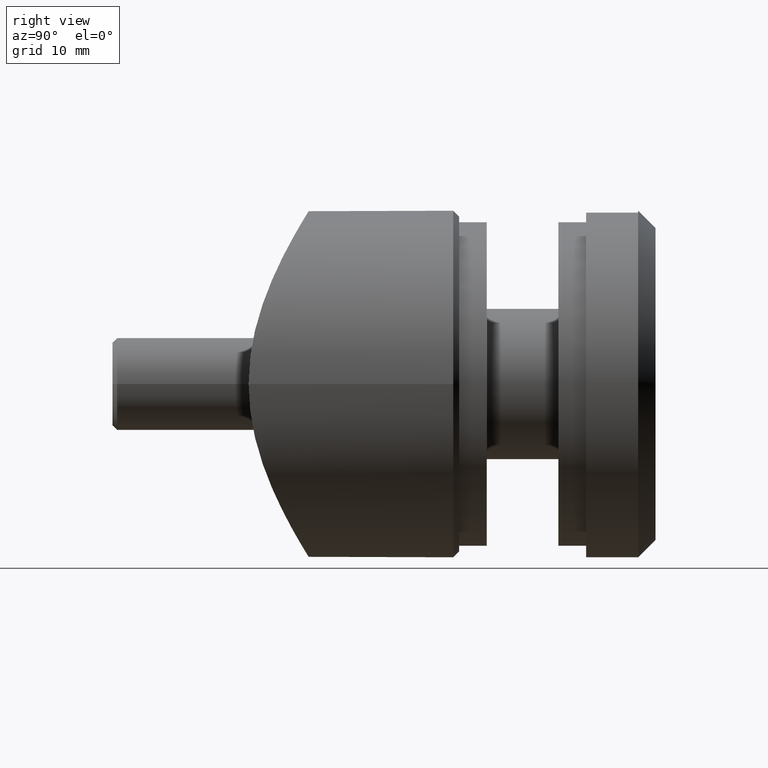
[diagram: clean part render]
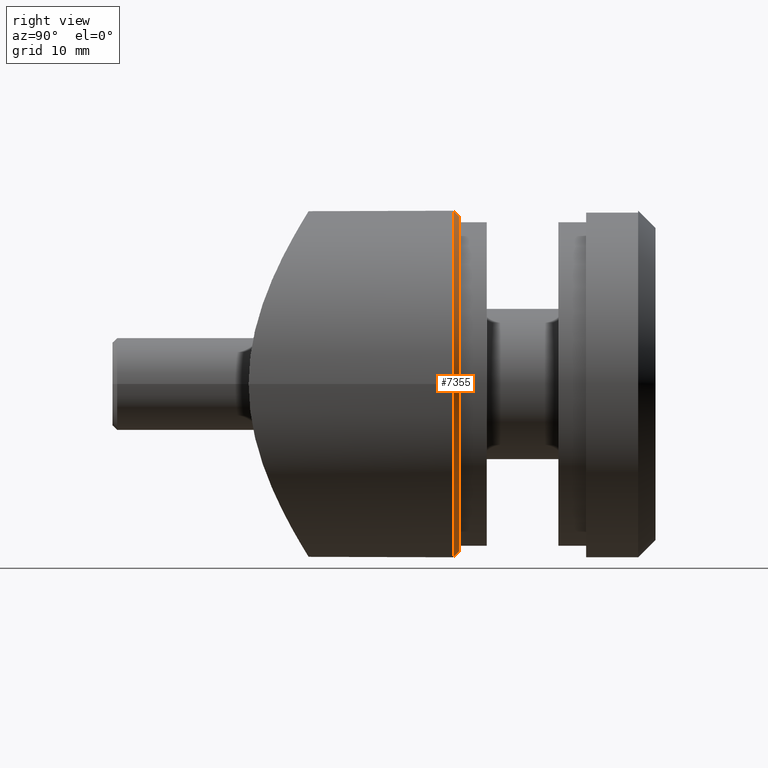
[diagram: same view with one face highlighted and labeled with its STEP entity id]
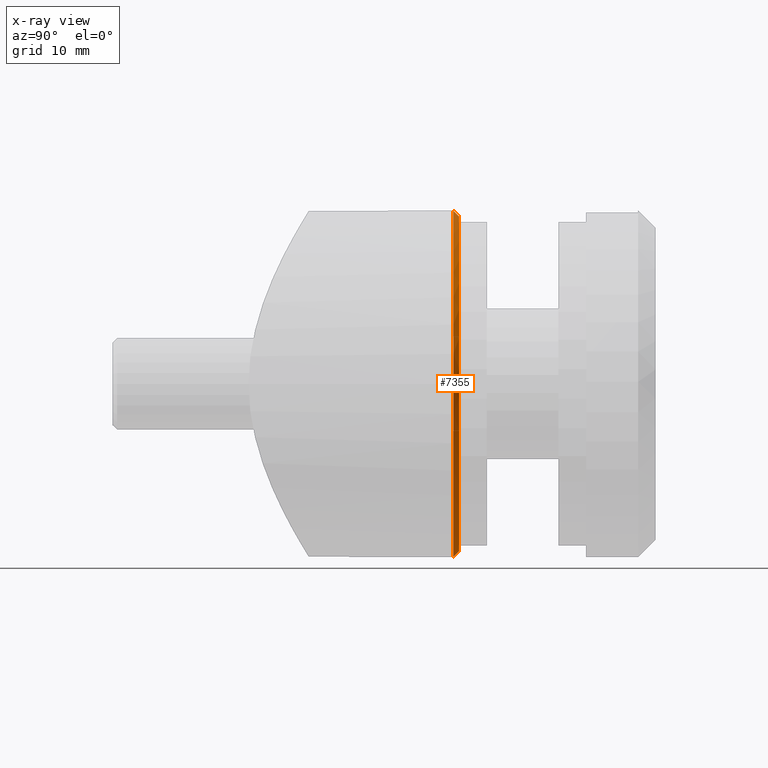
[diagram: x-ray of the same camera — body ghosted, the highlighted face saturated]
A machine part, right view. The second image highlights one B-rep face of the part: STEP entity #7355.
The next image is the same camera in x-ray: the body ghosted, the highlighted face saturated — about 0% of this face is hidden behind the body in this view.
In plain terms, the highlighted conical surface has half-angle 45 deg.
Its self-contained STEP definition (entity closure, byte-faithful):
#604 = ORIENTED_EDGE ( 'NONE', *, *, #5180, .F. ) ;
#1198 = VERTEX_POINT ( 'NONE', #8148 ) ;
#1581 = VERTEX_POINT ( 'NONE', #6104 ) ;
#2019 = CARTESIAN_POINT ( 'NONE',  ( -2.571758278209441267E-15, 12.49999999999999645, 0.000000000000000000 ) ) ;
#2308 = EDGE_LOOP ( 'NONE', ( #13592, #16914, #12345, #604, #15672 ) ) ;
#2662 = CARTESIAN_POINT ( 'NONE',  ( -2.571758278209441267E-15, 12.99999999999999822, 0.000000000000000000 ) ) ;
#3370 = DIRECTION ( 'NONE',  ( -0.000000000000000000, -1.000000000000000000, -0.000000000000000000 ) ) ;
#4243 = VERTEX_POINT ( 'NONE', #15587 ) ;
#4458 = DIRECTION ( 'NONE',  ( 8.659560562354950115E-17, -0.7071067811865462405, 0.7071067811865489050 ) ) ;
#5018 = VECTOR ( 'NONE', #4458, 999.9999999999998863 ) ;
#5180 = EDGE_CURVE ( 'NONE', #1581, #12325, #12438, .T. ) ;
#5661 = DIRECTION ( 'NONE',  ( -0.000000000000000000, -1.000000000000000000, -0.000000000000000000 ) ) ;
#5833 = DIRECTION ( 'NONE',  ( 0.000000000000000000, 0.000000000000000000, -1.000000000000000000 ) ) ;
#6104 = CARTESIAN_POINT ( 'NONE',  ( -2.571758278209441267E-15, 12.49999999999999645, -15.00000000000000178 ) ) ;
#6439 = CARTESIAN_POINT ( 'NONE',  ( -7.347880794884114806E-16, 12.49999999999999645, 15.00000000000000178 ) ) ;
#6728 = CARTESIAN_POINT ( 'NONE',  ( -7.347880794884114806E-16, 12.49999999999999645, 15.00000000000000178 ) ) ;
#6884 = CARTESIAN_POINT ( 'NONE',  ( 15.00000000000000000, 12.49999999999999645, 0.000000000000000000 ) ) ;
#7106 = EDGE_CURVE ( 'NONE', #4243, #1581, #13775, .T. ) ;
#7355 = ADVANCED_FACE ( 'NONE', ( #11290 ), #12317, .T. ) ;
#7540 = DIRECTION ( 'NONE',  ( -8.881784197001251337E-16, 0.000000000000000000, 1.000000000000000000 ) ) ;
#8130 = EDGE_CURVE ( 'NONE', #1198, #4243, #13551, .T. ) ;
#8148 = CARTESIAN_POINT ( 'NONE',  ( -7.654042494670951690E-16, 12.99999999999999822, 14.50000000000000178 ) ) ;
#8562 = LINE ( 'NONE', #6728, #5018 ) ;
#8647 = DIRECTION ( 'NONE',  ( -0.000000000000000000, -1.000000000000000000, -0.000000000000000000 ) ) ;
#8787 = DIRECTION ( 'NONE',  ( 0.000000000000000000, 0.000000000000000000, 1.000000000000000000 ) ) ;
#9479 = DIRECTION ( 'NONE',  ( 0.000000000000000000, -0.7071067811865462405, -0.7071067811865489050 ) ) ;
#9600 = EDGE_CURVE ( 'NONE', #1198, #11741, #8562, .T. ) ;
#9631 = CARTESIAN_POINT ( 'NONE',  ( -2.571758278209441267E-15, 12.49999999999999645, 0.000000000000000000 ) ) ;
#9915 = CARTESIAN_POINT ( 'NONE',  ( -2.571758278209441267E-15, 12.49999999999999645, 0.000000000000000000 ) ) ;
#10423 = AXIS2_PLACEMENT_3D ( 'NONE', #2019, #3370, #5833 ) ;
#10644 = VECTOR ( 'NONE', #9479, 999.9999999999998863 ) ;
#10786 = EDGE_CURVE ( 'NONE', #12325, #11741, #13094, .T. ) ;
#10863 = CARTESIAN_POINT ( 'NONE',  ( -2.571758278209441267E-15, 12.49999999999999645, -15.00000000000000178 ) ) ;
#11290 = FACE_OUTER_BOUND ( 'NONE', #2308, .T. ) ;
#11741 = VERTEX_POINT ( 'NONE', #6439 ) ;
#11910 = AXIS2_PLACEMENT_3D ( 'NONE', #9915, #8647, #7540 ) ;
#12049 = DIRECTION ( 'NONE',  ( 1.650797095189058802E-31, 1.000000000000000000, 0.000000000000000000 ) ) ;
#12317 = CONICAL_SURFACE ( 'NONE', #10423, 15.00000000000000178, 0.7853981633974501664 ) ;
#12325 = VERTEX_POINT ( 'NONE', #6884 ) ;
#12345 = ORIENTED_EDGE ( 'NONE', *, *, #10786, .F. ) ;
#12438 = CIRCLE ( 'NONE', #15544, 15.00000000000000178 ) ;
#13094 = CIRCLE ( 'NONE', #11910, 15.00000000000000178 ) ;
#13551 = CIRCLE ( 'NONE', #14380, 14.50000000000000178 ) ;
#13592 = ORIENTED_EDGE ( 'NONE', *, *, #8130, .F. ) ;
#13775 = LINE ( 'NONE', #10863, #10644 ) ;
#14380 = AXIS2_PLACEMENT_3D ( 'NONE', #2662, #12049, #15889 ) ;
#15544 = AXIS2_PLACEMENT_3D ( 'NONE', #9631, #5661, #8787 ) ;
#15587 = CARTESIAN_POINT ( 'NONE',  ( -2.571758278209441267E-15, 12.99999999999999822, -14.50000000000000178 ) ) ;
#15672 = ORIENTED_EDGE ( 'NONE', *, *, #7106, .F. ) ;
#15889 = DIRECTION ( 'NONE',  ( -1.000000000000000000, 0.000000000000000000, 0.000000000000000000 ) ) ;
#16914 = ORIENTED_EDGE ( 'NONE', *, *, #9600, .T. ) ;